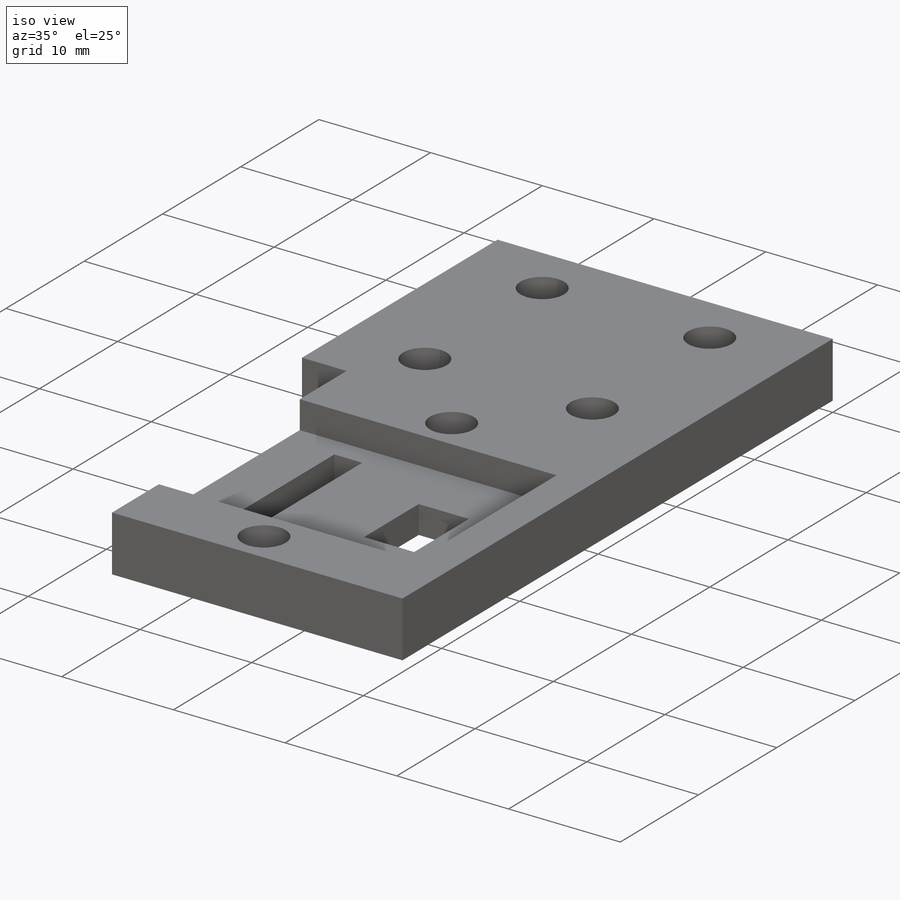
[diagram: iso view]
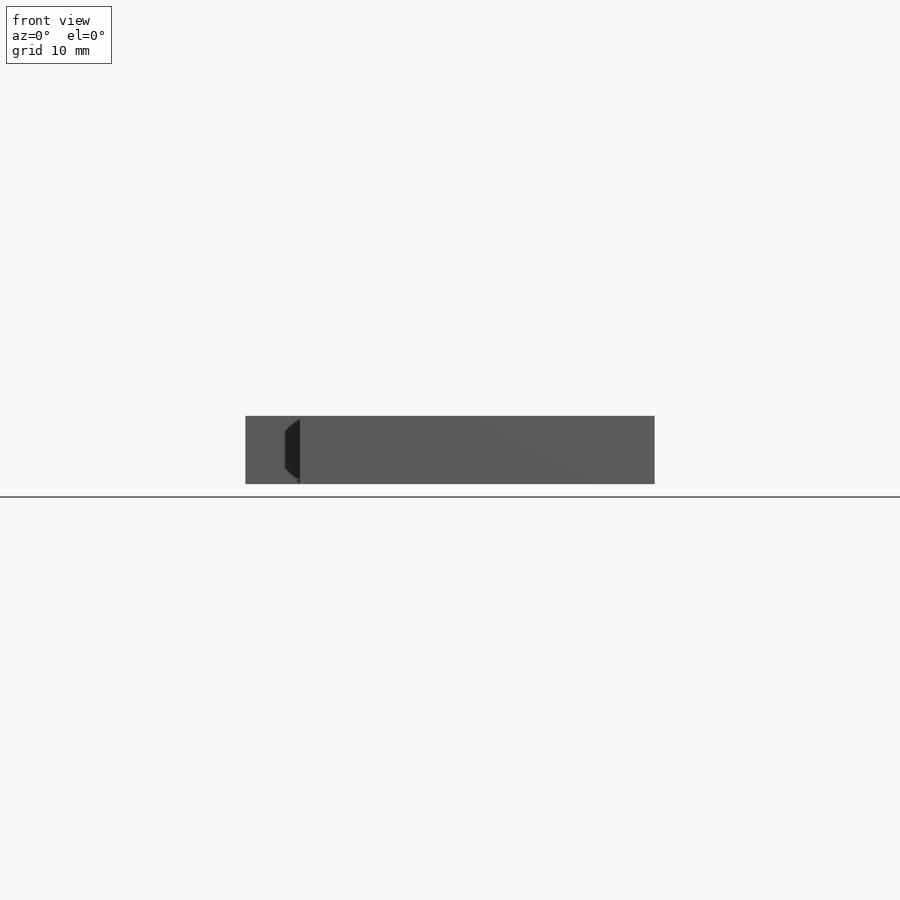
[diagram: front view]
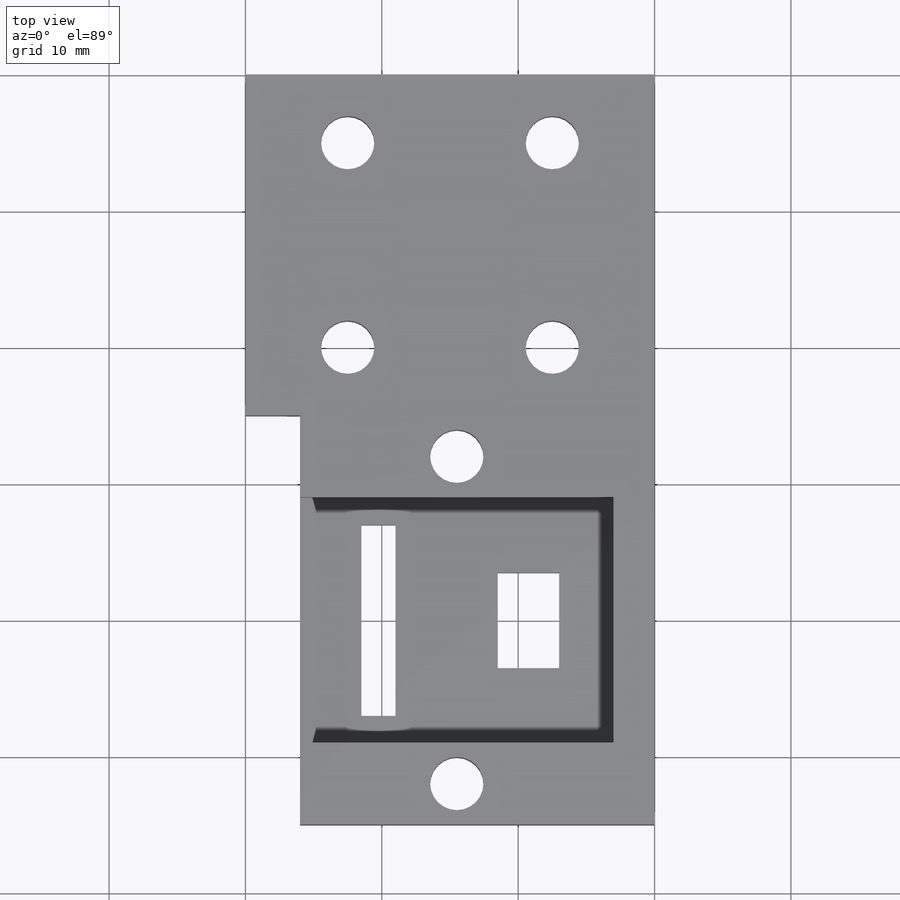
[diagram: top view]
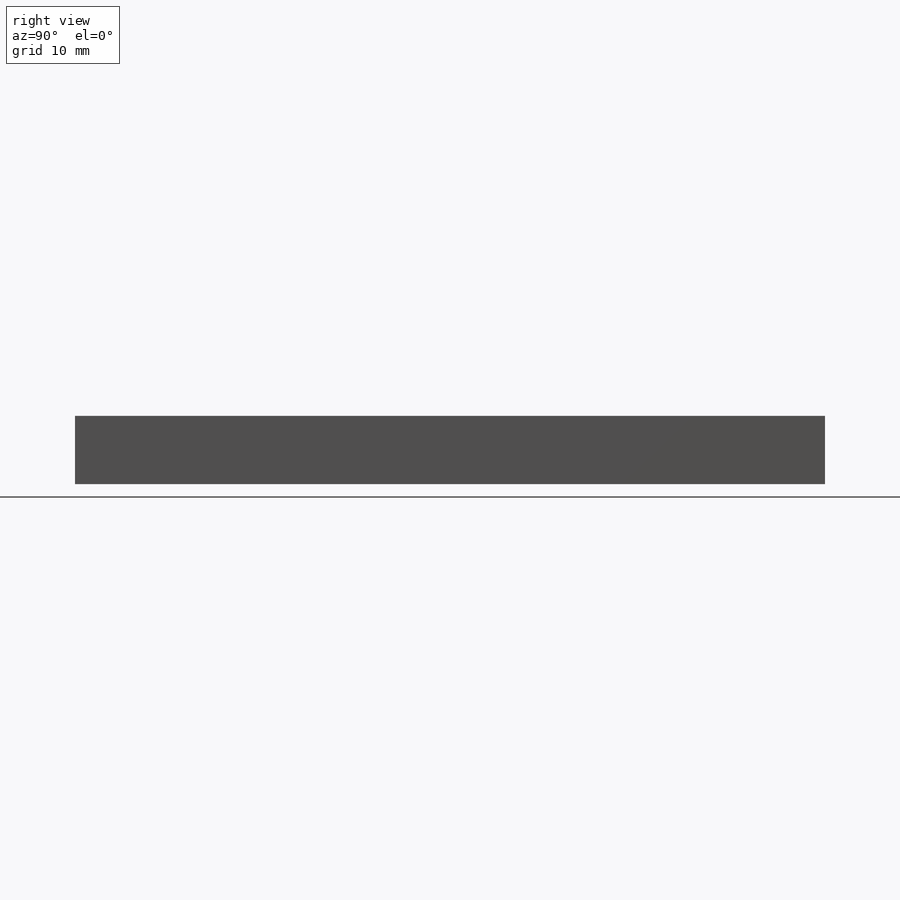
[diagram: right view]
SOLIDWORKS PART (.sldprt)
format: sldprt  version: not decoded by parser v0  size: 289,280 bytes
history: native  units: mm
features: sketch x10, plane x3, cut_extrude x3, hole x2, material x1, extrude x1 (+9 scaffold rows collapsed)
feature tree (29):
  scaffold x9  (default folders/planes/origin — collapsed)
  material  "Material <not specified>"
  plane  "Plan de face"
  plane  "Plan de dessus"
  plane  "Plan de droite"
  sketch  "Esquisse1"  dims[D1=30.0mm D2=60.0mm]
  extrude  "Boss.-Extru.1"  Depth=5mm
  sketch  "Esquisse2"  dims[D1=15.0mm D2=5.0mm]
  hole  "Dégagement M3.51"  Diameter=3.9mm Depth=5mm
  sketch  "Esquisse4"
  sketch  "Esquisse3"  dims[hole-wizard template sketch: 60 standard entries collapsed; hole parameters kept: c18.Profondeur du perçage jusqu'au prochain=5.0mm]
  sketch  "Esquisse18"  dims[D1=30.0mm D2=23.0mm D3=5.0mm D4=6.0mm D5=3.0mm]
  sketch  "Esquisse19"
  cut_extrude  "Enlèv. mat.-Extru.5"  [1 undecoded]
  hole  "Dégagement M3.53"  Diameter=3.9mm Depth=5mm
  sketch  "Esquisse21"
  sketch  "Esquisse20"  dims[hole-wizard template sketch: 46 standard entries collapsed; hole parameters kept: c15.Diamètre du perçage=3.9mm c15.Profondeur du perçage=5.0mm c15.D3=~14.816244mm c15.Angle de pointe=118.0deg]
  sketch  "Esquisse22"
  cut_extrude  "Enlèv. mat.-Extru.6"  Depth=2.5mm
  sketch  "Esquisse23"  dims[D1=14.0mm D2=7.0mm D3=4.5mm D4=2.5mm D5=4.0mm D6=16.0mm]
  cut_extrude  "Enlèv. mat.-Extru.7"  [1 undecoded]
decode coverage: 10 of 16 modeling features carry decoded parameters
note: ~ marks probable driven/reference dimensions
note: 2 parameter values undecoded
note: suppression state not decoded; provenance and decode notes live in map.json
